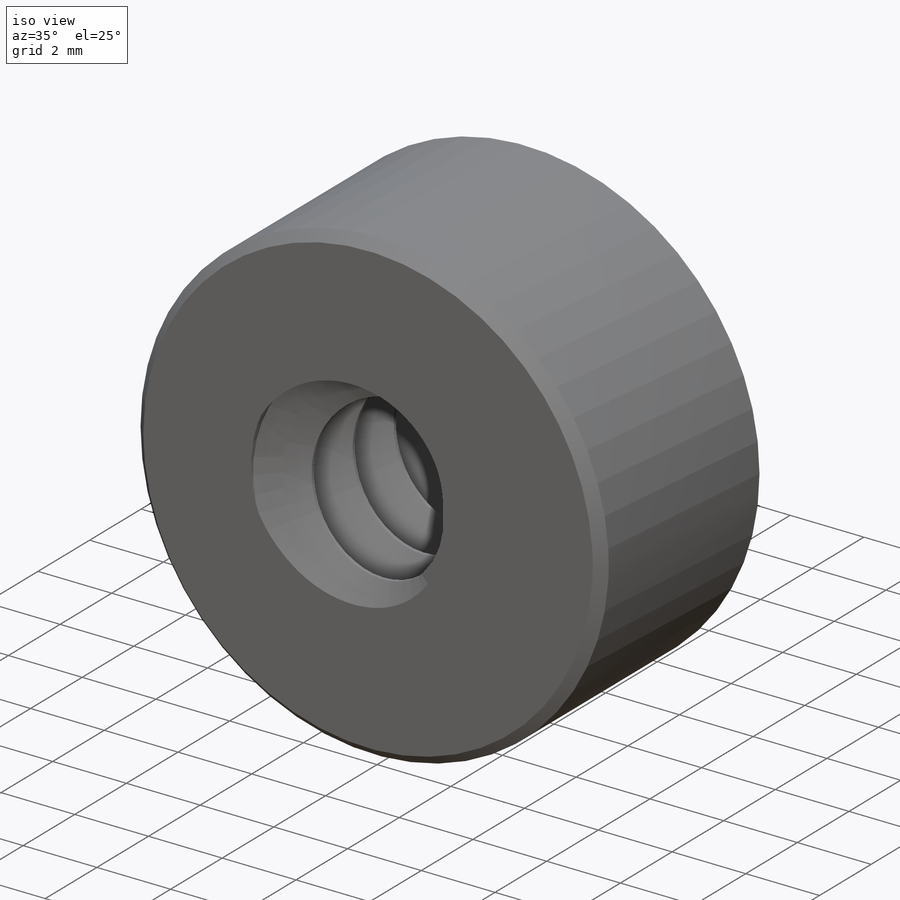
[diagram: iso view]
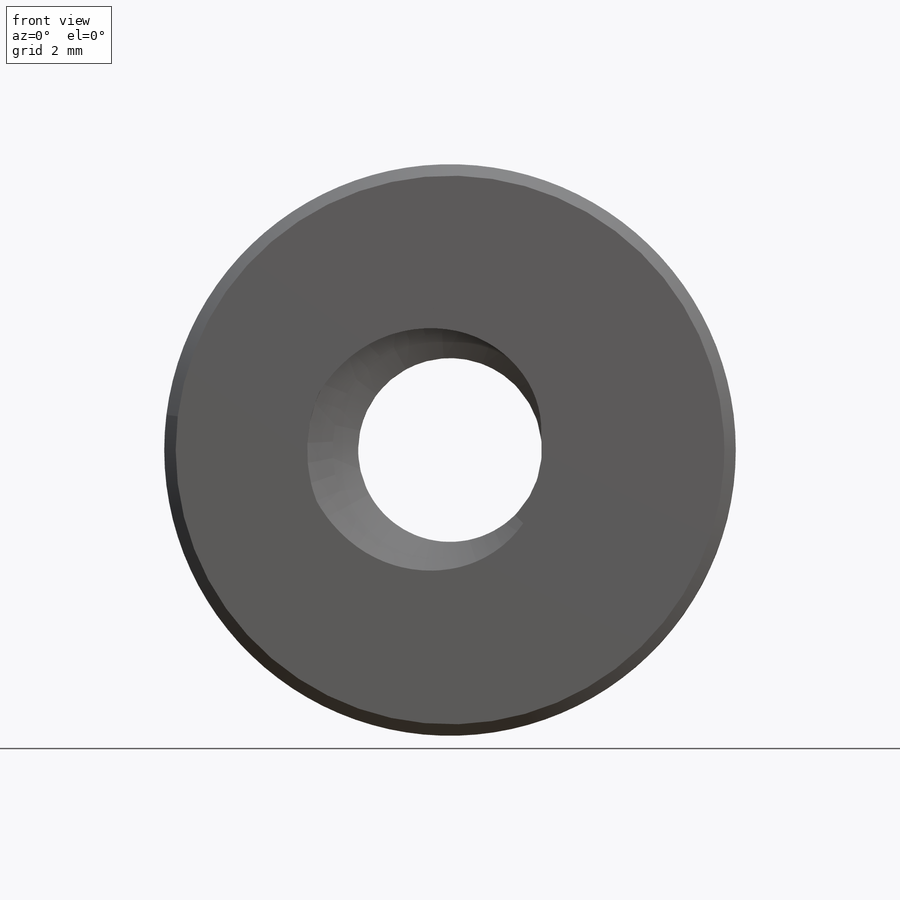
[diagram: front view]
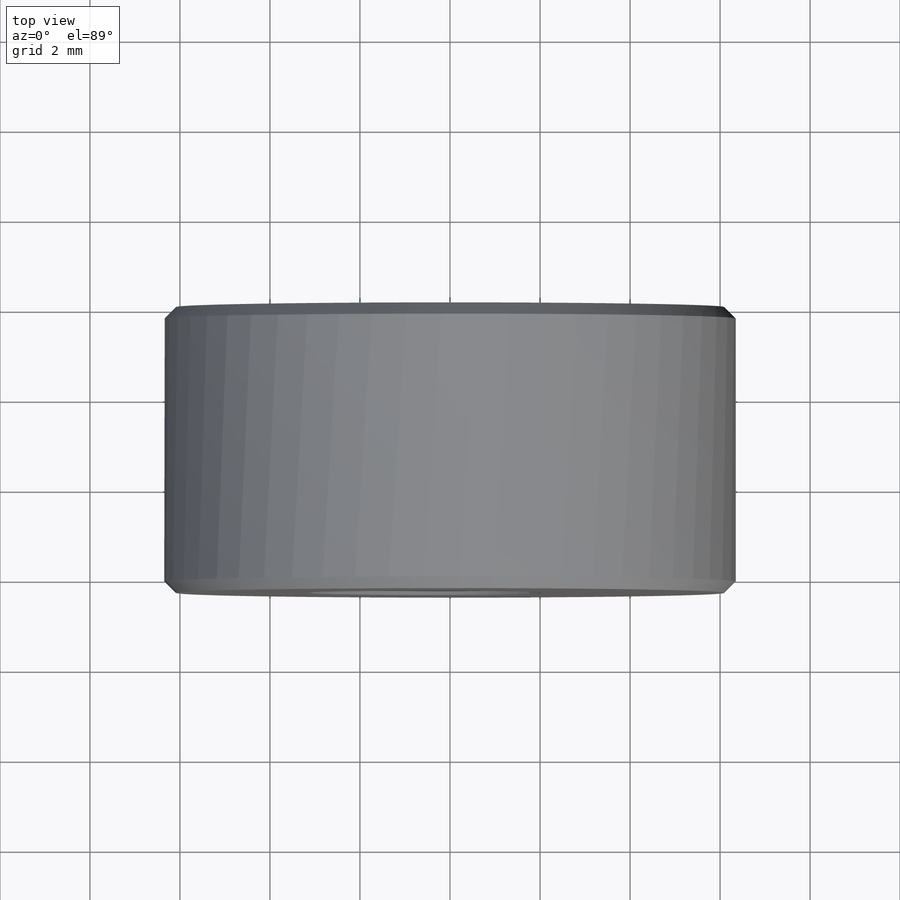
[diagram: top view]
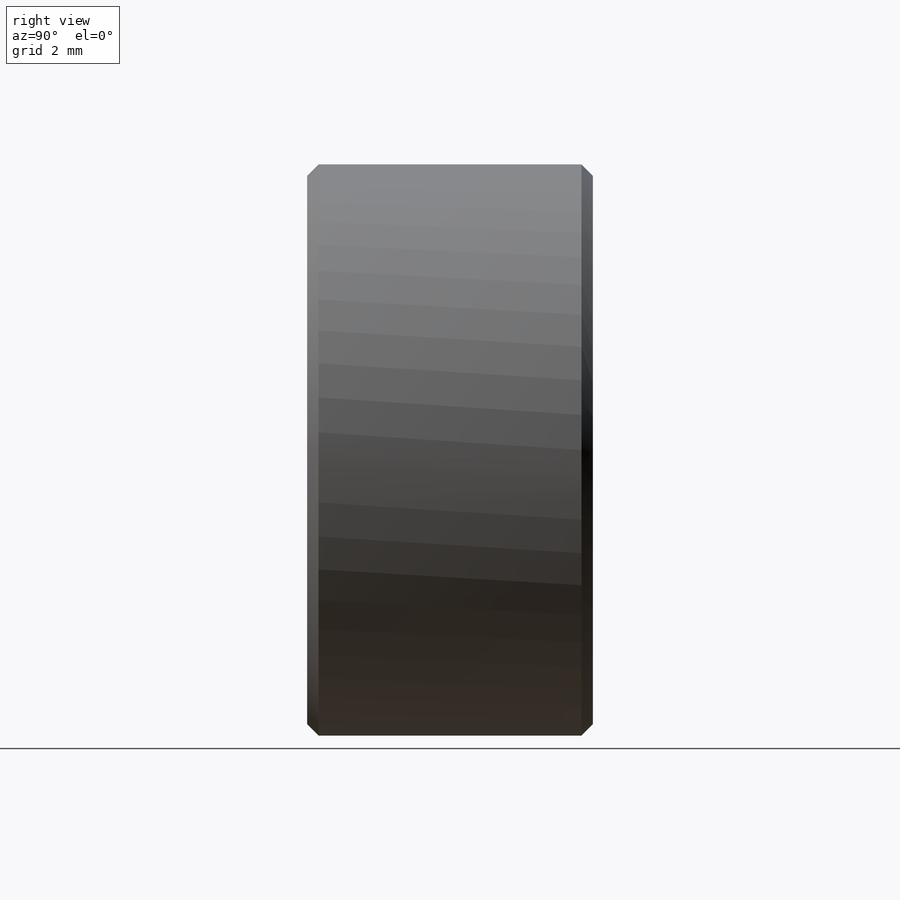
[diagram: right view]
SOLIDWORKS PART (.sldprt)
format: sldprt  version: not decoded by parser v0  size: 298,496 bytes
history: native  units: mm
features: sketch x3, material x1, extrude x1, helix x1, sweep x1, chamfer x1 (+13 scaffold rows collapsed)
feature tree (21):
  scaffold x13  (default folders/planes/origin — collapsed)
  material  "Material <not specified>"
  sketch  "Sketch1"  dims[D1=12.7mm D2=4.0894mm]
  extrude  "Boss-Extrude1"  Depth=6.35mm
  sketch  "Sketch2"  dims[c1.D1=4.0894mm c1.D2=6.35mm c1.D3=1.1303mm c2.D3=60.0deg c2.D4=~0.40783mm c3.D4=60.0deg c3.D5=~0.198437mm]
  sketch  "Sketch3"  dims[D1=~5.45592mm]
  helix  "Helix/Spiral1"  Pitch=7.540625mm
  sweep  "Cut-Sweep1"
  chamfer  "Chamfer1"  Distance=0.254mm Angle=45deg
decode coverage: 6 of 7 modeling features carry decoded parameters
note: ~ marks probable driven/reference dimensions
note: suppression state not decoded; provenance and decode notes live in map.json
